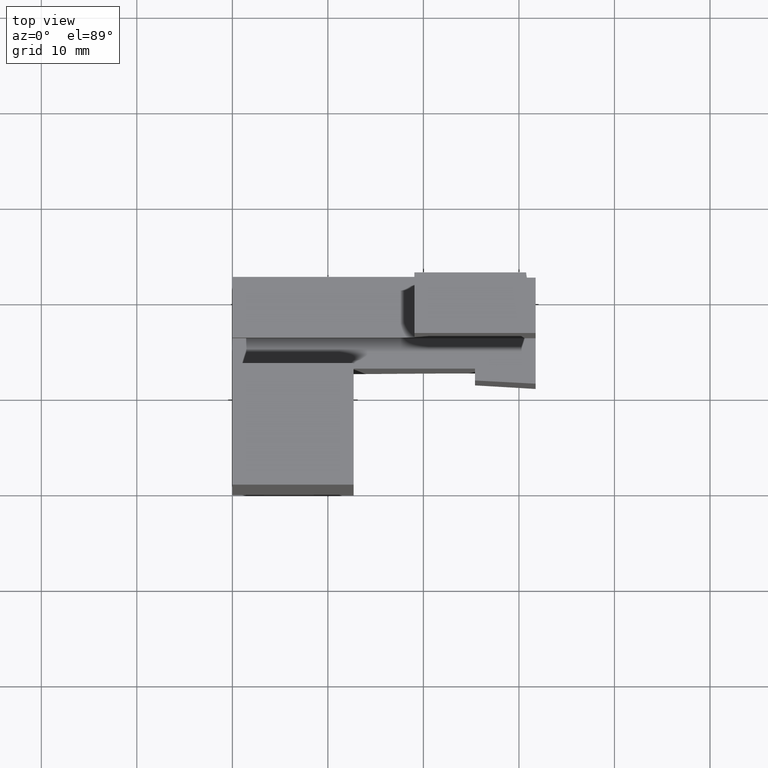
[diagram: clean part render]
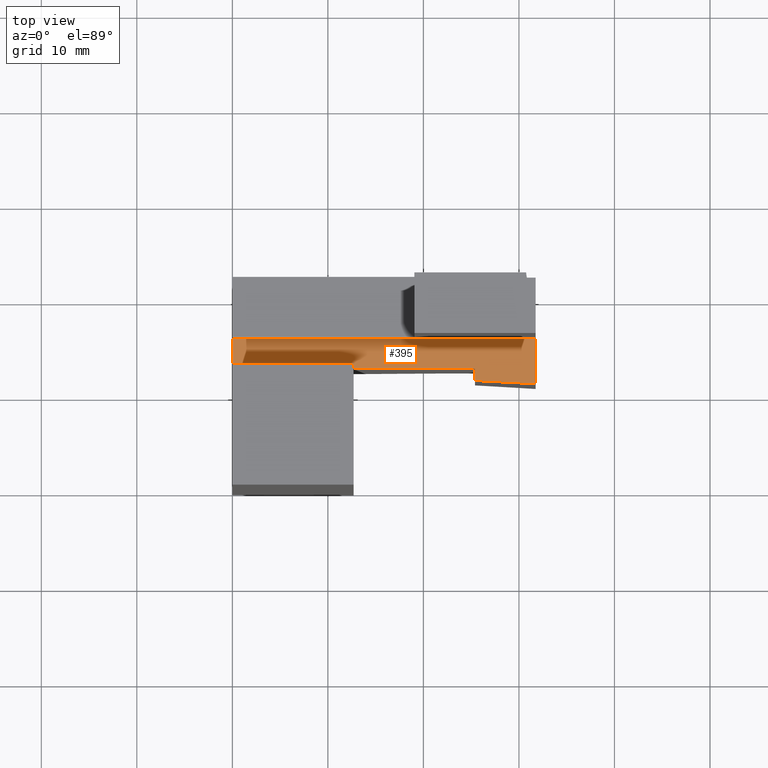
[diagram: same view with one face highlighted and labeled with its STEP entity id]
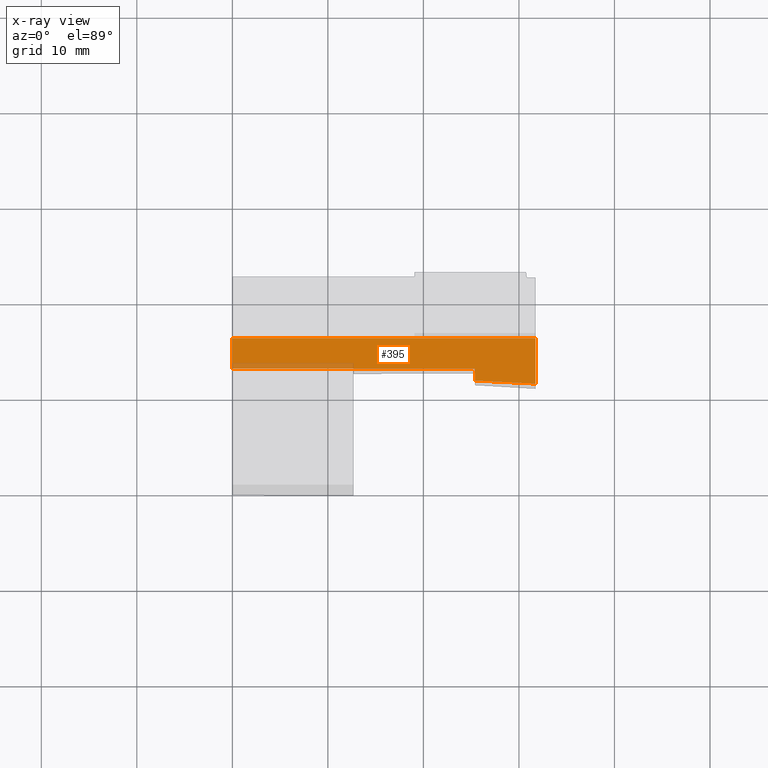
[diagram: x-ray of the same camera — body ghosted, the highlighted face saturated]
A machine part, top view. The second image highlights one B-rep face of the part: STEP entity #395.
The next image is the same camera in x-ray: the body ghosted, the highlighted face saturated — about 7% of this face is hidden behind the body in this view.
In plain terms, the highlighted planar face has unit normal (-0, -0, 1).
Its self-contained STEP definition (entity closure, byte-faithful):
#109=VECTOR('',#428,1.);
#115=VECTOR('',#436,1.);
#117=VECTOR('',#439,1.);
#118=VECTOR('',#440,1.);
#119=VECTOR('',#441,1.);
#120=VECTOR('',#442,1.);
#121=VECTOR('',#443,1.);
#148=LINE('',#490,#109);
#154=LINE('',#508,#115);
#156=LINE('',#517,#117);
#157=LINE('',#519,#118);
#158=LINE('',#521,#119);
#159=LINE('',#523,#120);
#160=LINE('',#524,#121);
#188=VERTEX_POINT('',#489);
#189=VERTEX_POINT('',#491);
#193=VERTEX_POINT('',#503);
#195=VERTEX_POINT('',#509);
#197=VERTEX_POINT('',#518);
#198=VERTEX_POINT('',#520);
#199=VERTEX_POINT('',#522);
#223=EDGE_CURVE('',#189,#188,#148,.T.);
#230=EDGE_CURVE('',#189,#195,#154,.T.);
#233=EDGE_CURVE('',#197,#188,#156,.T.);
#234=EDGE_CURVE('',#197,#198,#157,.T.);
#235=EDGE_CURVE('',#199,#198,#158,.T.);
#236=EDGE_CURVE('',#199,#193,#159,.T.);
#237=EDGE_CURVE('',#195,#193,#160,.T.);
#279=ORIENTED_EDGE('',*,*,#223,.T.);
#280=ORIENTED_EDGE('',*,*,#233,.F.);
#281=ORIENTED_EDGE('',*,*,#234,.T.);
#282=ORIENTED_EDGE('',*,*,#235,.F.);
#283=ORIENTED_EDGE('',*,*,#236,.T.);
#284=ORIENTED_EDGE('',*,*,#237,.F.);
#285=ORIENTED_EDGE('',*,*,#230,.F.);
#359=EDGE_LOOP('',(#279,#280,#281,#282,#283,#284,#285));
#377=FACE_BOUND('',#359,.T.);
#395=ADVANCED_FACE('',(#377),#617,.T.);
#413=AXIS2_PLACEMENT_3D('',#516,#438,$);
#428=DIRECTION('',(0.998629534754574,-0.052335956242942,4.51149641625811E-30));
#436=DIRECTION('',(0.,1.,1.57678304053942E-31));
#438=DIRECTION('',(-4.52595132006618E-30,-1.57678304053942E-31,1.));
#439=DIRECTION('',(0.,-1.,-1.57678304053942E-31));
#440=DIRECTION('',(-1.,1.54557032089551E-14,0.));
#441=DIRECTION('',(0.,1.,0.));
#442=DIRECTION('',(1.,-1.52109296287228E-14,0.));
#443=DIRECTION('',(-1.,0.,0.));
#489=CARTESIAN_POINT('',(1.25,0.43789805517924,-1.25));
#490=CARTESIAN_POINT('',(1.1284481072709,0.444268319944822,-1.25));
#491=CARTESIAN_POINT('',(1.,0.451,-1.25));
#503=CARTESIAN_POINT('',(0.500000000000002,0.500000000000011,-1.25));
#508=CARTESIAN_POINT('',(1.,0.28125,-1.25));
#509=CARTESIAN_POINT('',(0.999999999999997,0.5,-1.25));
#516=CARTESIAN_POINT('',(1.125,0.312499999999999,-1.25));
#517=CARTESIAN_POINT('',(1.25,0.375,-1.25));
#518=CARTESIAN_POINT('',(1.25,0.625,-1.25));
#519=CARTESIAN_POINT('',(1.25,0.625,-1.25));
#520=CARTESIAN_POINT('',(1.03154580240763E-14,0.625000000000019,-1.25));
#521=CARTESIAN_POINT('',(0.,0.479166666666671,-1.25));
#522=CARTESIAN_POINT('',(8.30481790073936E-15,0.500000000000019,-1.25));
#523=CARTESIAN_POINT('',(8.30481790073936E-15,0.500000000000019,-1.25));
#524=CARTESIAN_POINT('',(0.697916666666669,0.5,-1.25));
#617=PLANE('',#413);